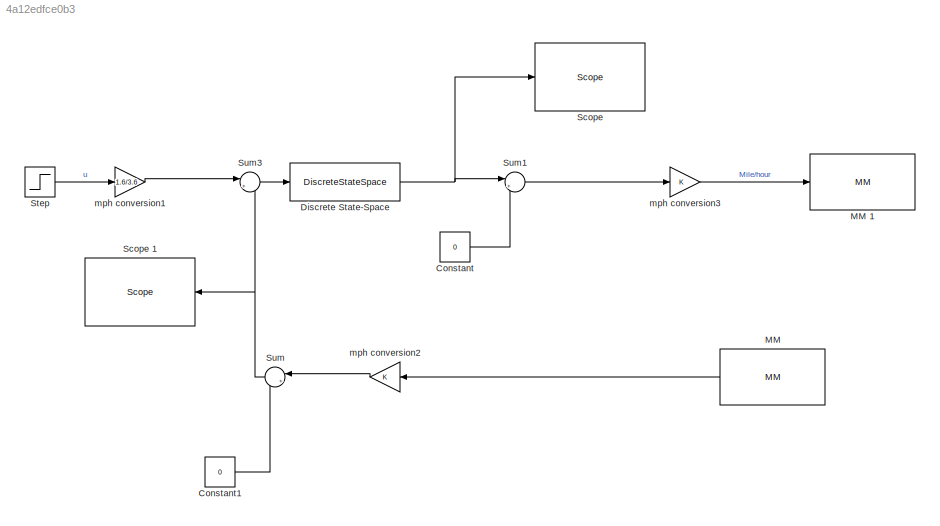
MODEL slx_4a12edfce0b3
KIND model
BLOCK [Constant] Constant
  Value = 0
BLOCK [Constant] Constant1
  Value = 0
BLOCK [DiscreteStateSpace] Discrete State-Space
  B = 0.01
  C = 0.9094
  D = 1.15
  SampleTime = 0.01
  X0 = .2606
BLOCK [Reference] MM   REF=xpcdiamondlib/A//D/MM 
  Ports = [0, 1]
  SourceBlock = xpcdiamondlib/A//D/MM
  SourceType = addiamondmm
  base = 0x300
  coupling = 16 single-ended channels
  numChans = 1
  range = -5V to 5V
  sampleTime = 0.01
  showStatus = off
BLOCK [Reference] MM 1  REF=xpcdiamondlib/D//A/MM 
  Ports = [1]
  SourceBlock = xpcdiamondlib/D//A/MM
  SourceType = dadiamondmm
  base = 0x300
  channel = [1]
  initValue = [0]
  range = [5]
  reset = [1]
  sampleTime = 0.01
BLOCK [Reference] Scope   REF=slrtlib/Displays and
Logging/Scope 
  Ports = [1]
  SourceBlock = slrtlib/Displays and\nLogging/Scope
  SourceType = xpcscopeblock
  autorestart = on
  autostart = on
  dynamicfilemode = off
  filename = data.dat
  formatstr = '%15.6f'
  grid = on
  interleave = 1
  maxwritefilesize = 512*1024^2
  mode = Lazy
  noprepostsamples = 0
  nosamples = 5000
  scopeno = 1
  scopetype = File
  triggerlevel = 0.0
  triggermode = FreeRun
  triggersample = 0
  triggerscope = 1
  triggersignal = 1
  triggerslope = Either
  trigsignalfromport = off
  viewmode = Graphical redraw
  writesize = 512
  ylimits = [0,0]
BLOCK [Reference] Scope 1  REF=slrtlib/Displays and
Logging/Scope 
  Ports = [1]
  SourceBlock = slrtlib/Displays and\nLogging/Scope
  SourceType = xpcscopeblock
  autorestart = on
  autostart = on
  dynamicfilemode = off
  filename = data2.dat
  formatstr = '%15.6f'
  grid = on
  interleave = 1
  maxwritefilesize = 512*1024^2
  mode = Lazy
  noprepostsamples = 0
  nosamples = 5000
  scopeno = 2
  scopetype = File
  triggerlevel = 0.0
  triggermode = FreeRun
  triggersample = 0
  triggerscope = 1
  triggersignal = 1
  triggerslope = Either
  trigsignalfromport = off
  viewmode = Graphical redraw
  writesize = 512
  ylimits = [0,0]
BLOCK [Step] Step
  After = 65
  Before = 60
  SampleTime = 0
  Time = 10
BLOCK [Sum] Sum
  IconShape = round
  InputSameDT = off
  Inputs = |++
  OutDataTypeStr = Inherit: Inherit via internal rule
  Ports = [2, 1]
  SaturateOnIntegerOverflow = off
BLOCK [Sum] Sum1
  IconShape = round
  InputSameDT = off
  Inputs = |++
  OutDataTypeStr = Inherit: Inherit via internal rule
  Ports = [2, 1]
  SaturateOnIntegerOverflow = off
BLOCK [Sum] Sum3
  IconShape = round
  InputSameDT = off
  Inputs = |+-
  OutDataTypeStr = Inherit: Inherit via internal rule
  Ports = [2, 1]
  SaturateOnIntegerOverflow = off
BLOCK [Gain] mph conversion1
  Gain = 1.6/3.6
BLOCK [Gain] mph conversion2
BLOCK [Gain] mph conversion3
LINE Constant1:1 -> Sum:2
LINE Constant:1 -> Sum1:2
NET Discrete State-Space:1 -> Scope :1, Sum1:1
LINE MM :1 -> mph conversion2:1
LINE Step:1 -> mph conversion1:1
LINE Sum1:1 -> mph conversion3:1
LINE Sum3:1 -> Discrete State-Space:1
NET Sum:1 -> Scope 1:1, Sum3:2
LINE mph conversion1:1 -> Sum3:1
LINE mph conversion2:1 -> Sum:1
LINE mph conversion3:1 -> MM 1:1
note: NET lines group one-source signal fan-out (src -> all destinations, sorted); 1:1 wires keep LINE
